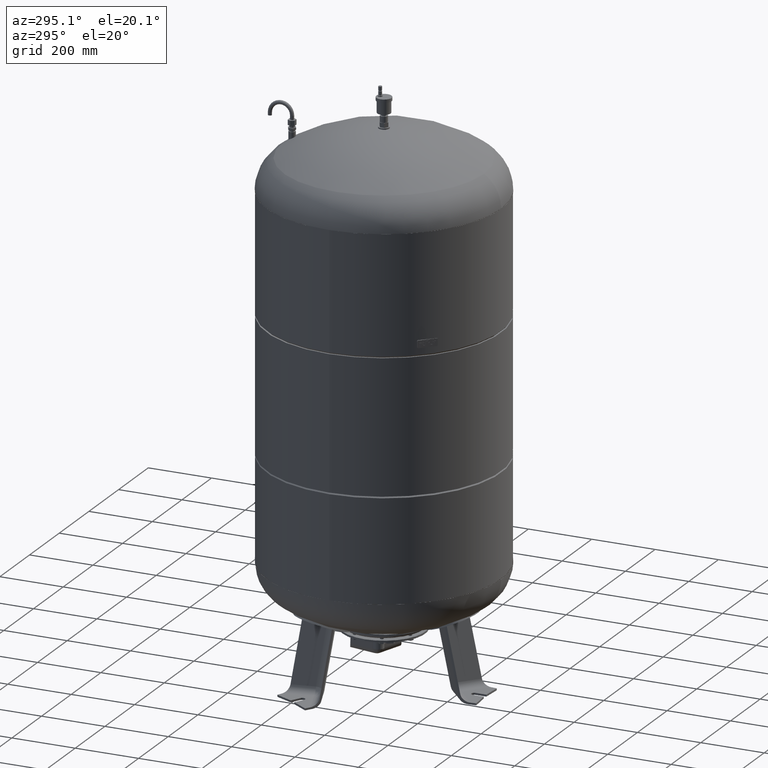
[diagram: clean part render]
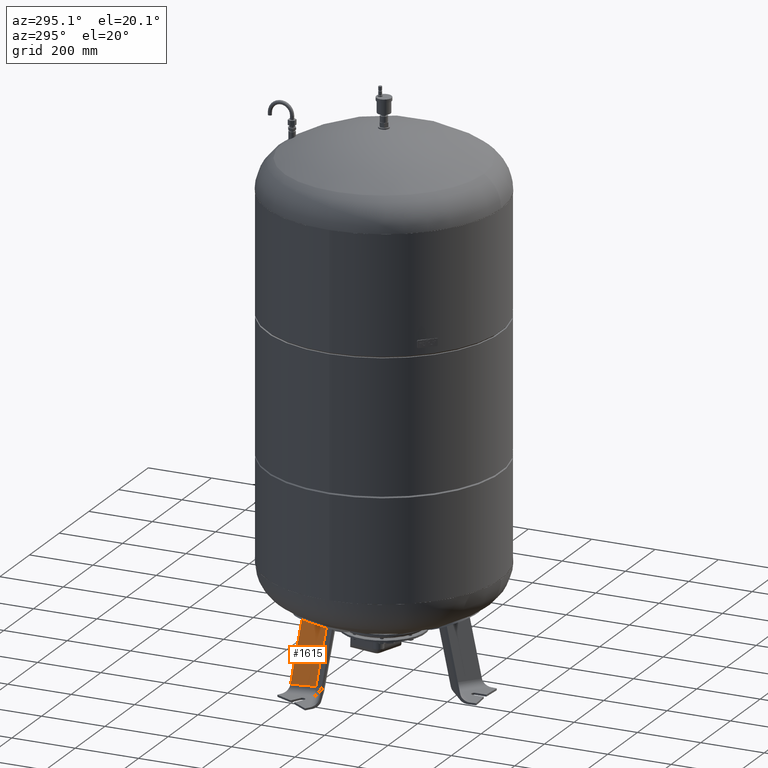
[diagram: same view with one face highlighted and labeled with its STEP entity id]
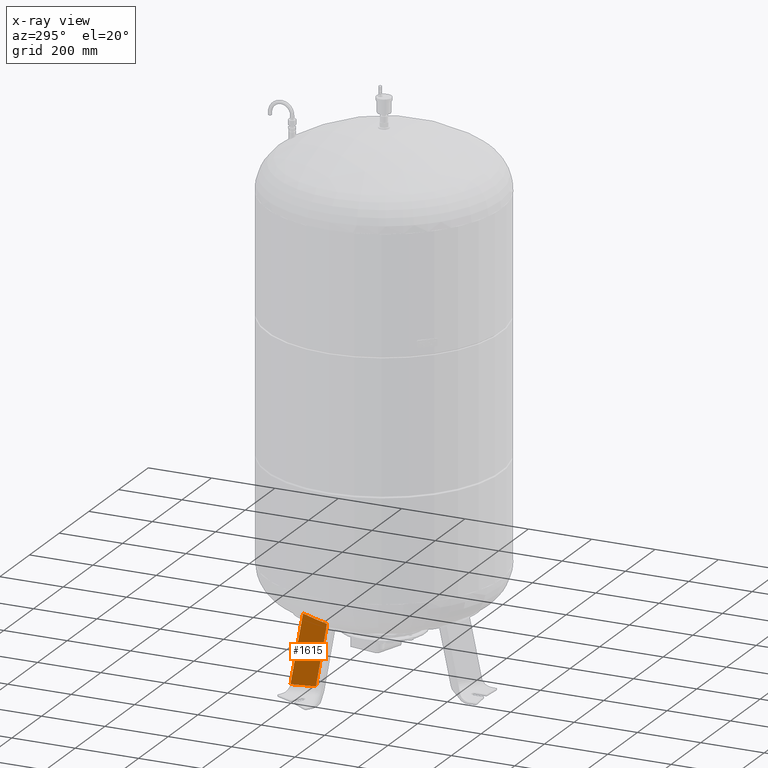
[diagram: x-ray of the same camera — body ghosted, the highlighted face saturated]
A machine part, auxiliary view. The second image highlights one B-rep face of the part: STEP entity #1615.
The next image is the same camera in x-ray: the body ghosted, the highlighted face saturated — about 0% of this face is hidden behind the body in this view.
In plain terms, the highlighted planar face has unit normal (-0.9697, -0.1854, 0.1588).
Its self-contained STEP definition (entity closure, byte-faithful):
#1245=CARTESIAN_POINT('',(-187.761520115666170,127.036932639186110,27.029948423057292));
#1246=VERTEX_POINT('',#1245);
#1318=CARTESIAN_POINT('',(-154.208216080562580,107.664923522317740,209.306223167677190));
#1319=VERTEX_POINT('',#1318);
#1400=CARTESIAN_POINT('',(-163.919904561021720,178.745124304571160,233.000000000000030));
#1401=VERTEX_POINT('',#1400);
#1409=CARTESIAN_POINT('',(-154.208216080562580,107.664923522317740,209.306223167677190));
#1410=CARTESIAN_POINT('',(-154.520081790807470,109.814001985848320,209.911227339780880));
#1411=CARTESIAN_POINT('',(-154.830314351136050,111.964792433220050,210.528203562929860));
#1412=CARTESIAN_POINT('',(-156.180494131630470,121.379616581859950,213.276729921399890));
#1413=CARTESIAN_POINT('',(-157.204447917036420,128.660594851697310,215.525731482895940));
#1414=CARTESIAN_POINT('',(-160.179781371720940,150.199130429623440,222.506751583386570));
#1415=CARTESIAN_POINT('',(-162.084372104026950,164.486965149242910,227.559845947390160));
#1416=CARTESIAN_POINT('',(-163.919904561021720,178.745124304571160,233.000000000000030));
#1417=B_SPLINE_CURVE_WITH_KNOTS('',3,(#1409,#1410,#1411,#1412,#1413,#1414,#1415,#1416),.UNSPECIFIED.,.F.,.U.,(4,2,2,4),(5.937335443723129,6.588195328792665,8.784260438390220,13.073486937020286),.UNSPECIFIED.);
#1418=EDGE_CURVE('',#1319,#1401,#1417,.T.);
#1573=CARTESIAN_POINT('',(-154.208216080562580,107.664923522317740,209.306223167677190));
#1574=DIRECTION('',(-0.180056805991956,0.103955845408880,-0.978147600733805));
#1575=VECTOR('',#1574,186.348435152196260);
#1576=LINE('',#1573,#1575);
#1577=EDGE_CURVE('',#1319,#1246,#1576,.T.);
#1592=CARTESIAN_POINT('',(-201.200799330712930,116.163335654755060,-67.735293817669458));
#1593=DIRECTION('',(-0.969740897595359,-0.185430570007244,0.158802063077708));
#1594=DIRECTION('',(0.180056805991956,-0.103955845408880,0.978147600733806));
#1595=AXIS2_PLACEMENT_3D('',#1592,#1593,#1594);
#1596=PLANE('',#1595);
#1597=CARTESIAN_POINT('',(-201.834744396155660,200.635267289667300,27.029948423057292));
#1598=VERTEX_POINT('',#1597);
#1599=CARTESIAN_POINT('',(-201.834744396155660,200.635267289667300,27.029948423057292));
#1600=DIRECTION('',(0.180056805991956,-0.103955845408880,0.978147600733805));
#1601=VECTOR('',#1600,210.571545053552460);
#1602=LINE('',#1599,#1601);
#1603=EDGE_CURVE('',#1598,#1401,#1602,.T.);
#1604=ORIENTED_EDGE('',*,*,#1603,.F.);
#1605=CARTESIAN_POINT('',(-187.761520115666170,127.036932639186110,27.029948423057292));
#1606=DIRECTION('',(-0.187813845079450,0.982204642422582,0.0));
#1607=VECTOR('',#1606,74.931772333057623);
#1608=LINE('',#1605,#1607);
#1609=EDGE_CURVE('',#1246,#1598,#1608,.T.);
#1610=ORIENTED_EDGE('',*,*,#1609,.F.);
#1611=ORIENTED_EDGE('',*,*,#1577,.F.);
#1612=ORIENTED_EDGE('',*,*,#1418,.T.);
#1613=EDGE_LOOP('',(#1604,#1610,#1611,#1612));
#1614=FACE_OUTER_BOUND('',#1613,.T.);
#1615=ADVANCED_FACE('',(#1614),#1596,.T.);